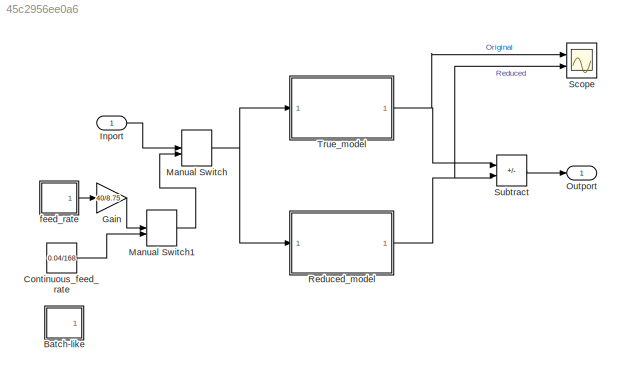
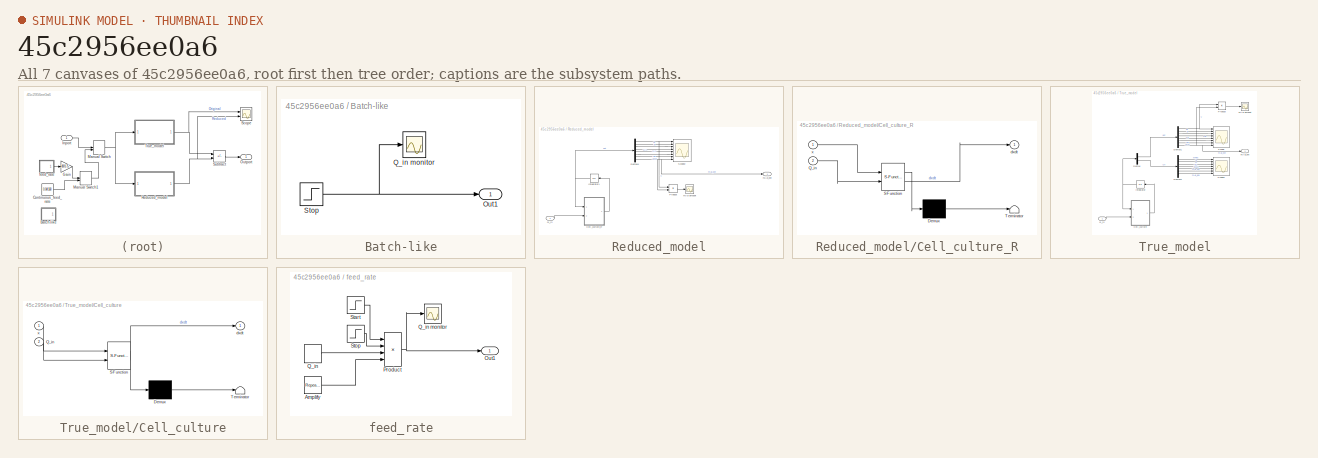
[diagram: thumbnail index - all 7 canvases of the model, root first then tree order]
MODEL slx_45c2956ee0a6
KIND model
CONFIG AbsTol = auto
CONFIG EnableMultiTasking = off
CONFIG FixedStep = auto
CONFIG MaxStep = auto
CONFIG MinStep = auto
CONFIG RelTol = 1e-3
CONFIG SampleTimeConstraint = Unconstrained
CONFIG SolverName = VariableStepAuto
CONFIG StartTime = 0.0
CONFIG StopTime = 168
WORKSPACE source: mxarray member
WORKSPACE Q_in = [0.12271780758 0.123470790595 0.124228393831 0.124990645638 0.125757574538 0.12652920923 0.127305578587]
WORKSPACE Sig: Simulink.Signal (value not decoded)
WORKSPACE Y_mAb_X = 3.05833848775e-12
WORKSPACE mnt_mAb = 1.19887616406e-08
WORKSPACE x0 = [0.2 200000000 200000000 25.1 5.01 0 0 100 0 0 0 0 ... (16 elements, 16x1)]
WORKSPACE xR0 = [0.2 200000000 200000000 25.1 5.01 0 0 100]
BLOCK [SubSystem] Batch-like
  Ports = [0, 1]
  RequestExecContextInheritance = off
BLOCK [Outport] Batch-like/Out1
BLOCK [Scope] Batch-like/Q_in monitor
  Floating = off
  NumInputPorts = 1
  Ports = [1]
  ScopeSpecificationString = Simulink.scopes.TimeScopeBlockCfg('CurrentConfiguration', extmgr.ConfigurationSet(extmgr.Configuration('Core','General UI',true),extmgr.Configuration('Core','Source UI',true),extmgr.Configuration('Sources','WiredSimulink',true,'DataLoggingVariableName','ScopeData1'),extmgr.Configuration('Visuals','Time Domain',true,'SerializedDisplays',{struct('MinYLimReal','-0.5','MaxYLimReal','4.5','YLabelReal',...<+1421ch>
BLOCK [Step] Batch-like/Stop
  After = 0
  Before = 0.04/0.01
  SampleTime = 0
  Time = 0.01
BLOCK [Constant] Continuous_feed_rate
  Value = 0.04/168
BLOCK [Gain] Gain
  Gain = 40/8.75
BLOCK [Inport] Inport
BLOCK [ManualSwitch] Manual Switch
  CurrentSetting = 0
BLOCK [ManualSwitch] Manual Switch1
  CurrentSetting = 0
BLOCK [Outport] Outport
BLOCK [SubSystem] Reduced_model
  Ports = [1, 1]
  RequestExecContextInheritance = off
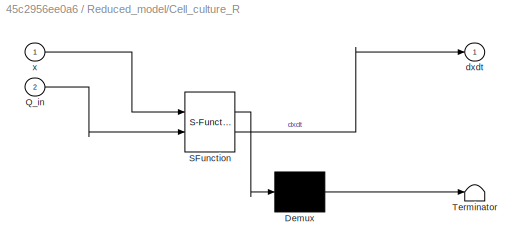
BLOCK [SubSystem] Reduced_model/Cell_culture_R
  ErrorFcn = Stateflow.Translate.translate
  PermitHierarchicalResolution = ExplicitOnly
  Ports = [2, 1]
  RequestExecContextInheritance = off
  SFBlockType = MATLAB Function
  TreatAsAtomicUnit = on
BLOCK [Demux] Reduced_model/Cell_culture_R/ Demux 
  Outputs = 1
  Ports = [1, 1]
BLOCK [S-Function] Reduced_model/Cell_culture_R/ SFunction 
  EnableBusSupport = on
  FunctionName = sf_sfun
  PortCounts = [2 2]
  Ports = [2, 2]
  SFcnIsStateOwnerBlock = off
  SFunctionDeploymentMode = off
  Tag = Stateflow S-Function 1
BLOCK [Terminator] Reduced_model/Cell_culture_R/ Terminator 
BLOCK [Inport] Reduced_model/Cell_culture_R/Q_in
  Port = 2
BLOCK [Outport] Reduced_model/Cell_culture_R/dxdt
  VectorParamsAs1DForOutWhenUnconnected = off
BLOCK [Inport] Reduced_model/Cell_culture_R/x
BLOCK [Demux] Reduced_model/Demux4
  Outputs = 8
  Ports = [1, 8]
BLOCK [Integrator] Reduced_model/Integrator1
  InitialCondition = xR0
  LimitOutput = on
  LowerSaturationLimit = 0
  Ports = [1, 1]
BLOCK [Product] Reduced_model/Product
  Ports = [2, 1]
BLOCK [Inport] Reduced_model/Q_in
BLOCK [Scope] Reduced_model/Scope2
  Floating = off
  NumInputPorts = 8
  Ports = [8]
  ScopeSpecificationString = Simulink.scopes.TimeScopeBlockCfg('CurrentConfiguration', extmgr.ConfigurationSet(extmgr.Configuration('Core','General UI',true),extmgr.Configuration('Core','Source UI',true),extmgr.Configuration('Sources','WiredSimulink',true,'DataLoggingVariableName','ScopeData3'),extmgr.Configuration('Visuals','Time Domain',true,'SerializedDisplays',{struct('MinYLimReal','0.195','MaxYLimReal','0.245','YLabelRea...<+7131ch>
BLOCK [Scope] Reduced_model/mAb amount
  Floating = off
  NumInputPorts = 1
  Ports = [1]
  ScopeSpecificationString = Simulink.scopes.TimeScopeBlockCfg('CurrentConfiguration', extmgr.ConfigurationSet(extmgr.Configuration('Core','General UI',true),extmgr.Configuration('Core','Source UI',true),extmgr.Configuration('Sources','WiredSimulink',true,'DataLoggingVariableName','ScopeData1'),extmgr.Configuration('Visuals','Time Domain',true,'SerializedDisplays',{struct('MinYLimReal','-29.03035','MaxYLimReal','461.27319','Y...<+1727ch>
BLOCK [Outport] Reduced_model/mAb_ext
BLOCK [Scope] Scope
  Floating = off
  NumInputPorts = 2
  Ports = [2]
  ScopeSpecificationString = Simulink.scopes.TimeScopeBlockCfg('CurrentConfiguration', extmgr.ConfigurationSet(extmgr.Configuration('Core','General UI',true),extmgr.Configuration('Core','Source UI',true),extmgr.Configuration('Sources','WiredSimulink',true),extmgr.Configuration('Visuals','Time Domain',true,'SerializedDisplays',{struct('MinYLimReal','-350.08298','MaxYLimReal','4146.81335','YLabelReal','','MinYLimMag',' 0.00000'...<+1719ch>
BLOCK [Sum] Subtract
  IconShape = rectangular
  Inputs = +-
  Ports = [2, 1]
BLOCK [SubSystem] True_model
  Ports = [1, 1]
  RequestExecContextInheritance = off
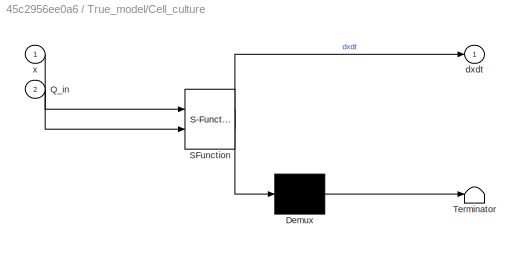
BLOCK [SubSystem] True_model/Cell_culture
  ErrorFcn = Stateflow.Translate.translate
  PermitHierarchicalResolution = ExplicitOnly
  Ports = [2, 1]
  RequestExecContextInheritance = off
  SFBlockType = MATLAB Function
  TreatAsAtomicUnit = on
BLOCK [Demux] True_model/Cell_culture/ Demux 
  Outputs = 1
  Ports = [1, 1]
BLOCK [S-Function] True_model/Cell_culture/ SFunction 
  EnableBusSupport = on
  FunctionName = sf_sfun
  PortCounts = [2 2]
  Ports = [2, 2]
  SFcnIsStateOwnerBlock = off
  SFunctionDeploymentMode = off
  Tag = Stateflow S-Function 3
BLOCK [Terminator] True_model/Cell_culture/ Terminator 
BLOCK [Inport] True_model/Cell_culture/Q_in
  Port = 2
BLOCK [Outport] True_model/Cell_culture/dxdt
  VectorParamsAs1DForOutWhenUnconnected = off
BLOCK [Inport] True_model/Cell_culture/x
BLOCK [Demux] True_model/Demux
  Outputs = [8 8]
  Ports = [1, 2]
BLOCK [Demux] True_model/Demux1
  Outputs = 8
  Ports = [1, 8]
BLOCK [Demux] True_model/Demux2
  Outputs = [2 1 1 1 1 1 1]
  Ports = [1, 7]
BLOCK [Integrator] True_model/Integrator
  InitialCondition = x0
  LimitOutput = on
  LowerSaturationLimit = 0
  Ports = [1, 1]
BLOCK [Product] True_model/Product
  Ports = [2, 1]
BLOCK [Inport] True_model/Q_in
BLOCK [Scope] True_model/Scope
  Floating = off
  NumInputPorts = 8
  Ports = [8]
  ScopeSpecificationString = Simulink.scopes.TimeScopeBlockCfg('CurrentConfiguration', extmgr.ConfigurationSet(extmgr.Configuration('Core','General UI',true),extmgr.Configuration('Core','Source UI',true),extmgr.Configuration('Sources','WiredSimulink',true,'DataLoggingVariableName','ScopeData1'),extmgr.Configuration('Visuals','Time Domain',true,'SerializedDisplays',{struct('MinYLimReal','0.19891','MaxYLimReal','0.20984','YLabe...<+7110ch>
BLOCK [Scope] True_model/Scope1
  Floating = off
  NumInputPorts = 7
  Ports = [7]
  ScopeSpecificationString = Simulink.scopes.TimeScopeBlockCfg('CurrentConfiguration', extmgr.ConfigurationSet(extmgr.Configuration('Core','General UI',true),extmgr.Configuration('Core','Source UI',true),extmgr.Configuration('Sources','WiredSimulink',true,'DataLoggingVariableName','ScopeData2'),extmgr.Configuration('Visuals','Time Domain',true,'SerializedDisplays',{struct('MinYLimReal','-562499.9741','MaxYLimReal','5062499.76...<+6658ch>
BLOCK [Scope] True_model/mAb amount
  Floating = off
  NumInputPorts = 1
  Ports = [1]
  ScopeSpecificationString = Simulink.scopes.TimeScopeBlockCfg('CurrentConfiguration', extmgr.ConfigurationSet(extmgr.Configuration('Core','General UI',true),extmgr.Configuration('Core','Source UI',true),extmgr.Configuration('Sources','WiredSimulink',true,'DataLoggingVariableName','ScopeData2'),extmgr.Configuration('Visuals','Time Domain',true,'SerializedDisplays',{struct('MinYLimReal','-88.54413','MaxYLimReal','996.8972','YL...<+1691ch>
BLOCK [Outport] True_model/mAb_ext
BLOCK [SubSystem] feed_rate
  Ports = [0, 1]
  RequestExecContextInheritance = off
BLOCK [Reference] feed_rate/Amplify  REF=simulink/Sources/Repeating
Sequence
Stair
  Ports = [0, 1]
  SourceBlock = simulink/Sources/Repeating\nSequence\nStair
  SourceProductBaseCode = SL
  SourceType = Repeating Sequence Stair
BLOCK [Outport] feed_rate/Out1
BLOCK [Product] feed_rate/Product
  Inputs = 4
  Ports = [4, 1]
BLOCK [DiscretePulseGenerator] feed_rate/Q_in
  Period = 24
  PhaseDelay = 12
  Ports = [0, 1]
  PulseType = Time based
  PulseWidth = 1/24
BLOCK [Scope] feed_rate/Q_in monitor
  Floating = off
  NumInputPorts = 1
  Ports = [1]
  ScopeSpecificationString = Simulink.scopes.TimeScopeBlockCfg('CurrentConfiguration', extmgr.ConfigurationSet(extmgr.Configuration('Core','General UI',true),extmgr.Configuration('Core','Source UI',true),extmgr.Configuration('Sources','WiredSimulink',true,'DataLoggingVariableName','ScopeData1'),extmgr.Configuration('Visuals','Time Domain',true,'SerializedDisplays',{struct('MinYLimReal','-0.00079','MaxYLimReal','0.00707','YLab...<+1471ch>
BLOCK [Step] feed_rate/Start
  SampleTime = 0
BLOCK [Step] feed_rate/Stop
  After = 0
  Before = 1
  SampleTime = 0
  Time = 169
NET Batch-like/Stop:1 -> Batch-like/Out1:1, Batch-like/Q_in monitor:1
LINE Continuous_feed_rate:1 -> Manual Switch1:2
LINE Gain:1 -> Manual Switch1:1
LINE Inport:1 -> Manual Switch:1
LINE Manual Switch1:1 -> Manual Switch:2
NET Manual Switch:1 -> Reduced_model:1, True_model:1
LINE Reduced_model/Cell_culture_R:1 -> Reduced_model/Integrator1:1
NET Reduced_model/Demux4:1 -> Reduced_model/Product:1, Reduced_model/Scope2:1
LINE Reduced_model/Demux4:2 -> Reduced_model/Scope2:2
LINE Reduced_model/Demux4:3 -> Reduced_model/Scope2:3
LINE Reduced_model/Demux4:4 -> Reduced_model/Scope2:4
LINE Reduced_model/Demux4:5 -> Reduced_model/Scope2:5
LINE Reduced_model/Demux4:6 -> Reduced_model/Scope2:6
LINE Reduced_model/Demux4:7 -> Reduced_model/Scope2:7
NET Reduced_model/Demux4:8 -> Reduced_model/Product:2, Reduced_model/Scope2:8, Reduced_model/mAb_ext:1
NET Reduced_model/Integrator1:1 -> Reduced_model/Cell_culture_R:1, Reduced_model/Demux4:1
LINE Reduced_model/Product:1 -> Reduced_model/mAb amount:1
LINE Reduced_model/Q_in:1 -> Reduced_model/Cell_culture_R:2
NET Reduced_model:1 -> Scope:2, Subtract:2
LINE Subtract:1 -> Outport:1
LINE True_model/Cell_culture:1 -> True_model/Integrator:1
NET True_model/Demux1:1 -> True_model/Product:1, True_model/Scope:1
LINE True_model/Demux1:2 -> True_model/Scope:2
LINE True_model/Demux1:3 -> True_model/Scope:3
LINE True_model/Demux1:4 -> True_model/Scope:4
LINE True_model/Demux1:5 -> True_model/Scope:5
LINE True_model/Demux1:6 -> True_model/Scope:6
LINE True_model/Demux1:7 -> True_model/Scope:7
NET True_model/Demux1:8 -> True_model/Product:2, True_model/Scope:8, True_model/mAb_ext:1
LINE True_model/Demux2:1 -> True_model/Scope1:1
LINE True_model/Demux2:2 -> True_model/Scope1:2
LINE True_model/Demux2:3 -> True_model/Scope1:3
LINE True_model/Demux2:4 -> True_model/Scope1:4
LINE True_model/Demux2:5 -> True_model/Scope1:5
LINE True_model/Demux2:6 -> True_model/Scope1:6
LINE True_model/Demux2:7 -> True_model/Scope1:7
LINE True_model/Demux:1 -> True_model/Demux1:1
LINE True_model/Demux:2 -> True_model/Demux2:1
NET True_model/Integrator:1 -> True_model/Cell_culture:1, True_model/Demux:1
LINE True_model/Product:1 -> True_model/mAb amount:1
LINE True_model/Q_in:1 -> True_model/Cell_culture:2
NET True_model:1 -> Scope:1, Subtract:1
LINE feed_rate/Amplify:1 -> feed_rate/Product:4
NET feed_rate/Product:1 -> feed_rate/Out1:1, feed_rate/Q_in monitor:1
LINE feed_rate/Q_in:1 -> feed_rate/Product:3
LINE feed_rate/Start:1 -> feed_rate/Product:1
LINE feed_rate/Stop:1 -> feed_rate/Product:2
LINE feed_rate:1 -> Gain:1
note: NET lines group one-source signal fan-out (src -> all destinations, sorted); 1:1 wires keep LINE
CHART Reduced_model/Cell_culture_R states=1 transitions=1
  STATE_LABEL 'eML_blk_kernel()'
  STATE_LABEL 'SCRIPT:\nfunction dxdt = fcn(x,Q_in)\ndxdt = Kontoravdi2010RStateFcn(x,Q_in);\nend'
CHART True_model/Cell_culture states=1 transitions=1
  STATE_LABEL 'eML_blk_kernel()'
  STATE_LABEL 'SCRIPT:\nfunction dxdt = fcn(x,Q_in)\ndxdt = Kontoravdi2010StateFcn(x,Q_in);\nend'
CHART  states=0 transitions=0
CHART  states=0 transitions=0
